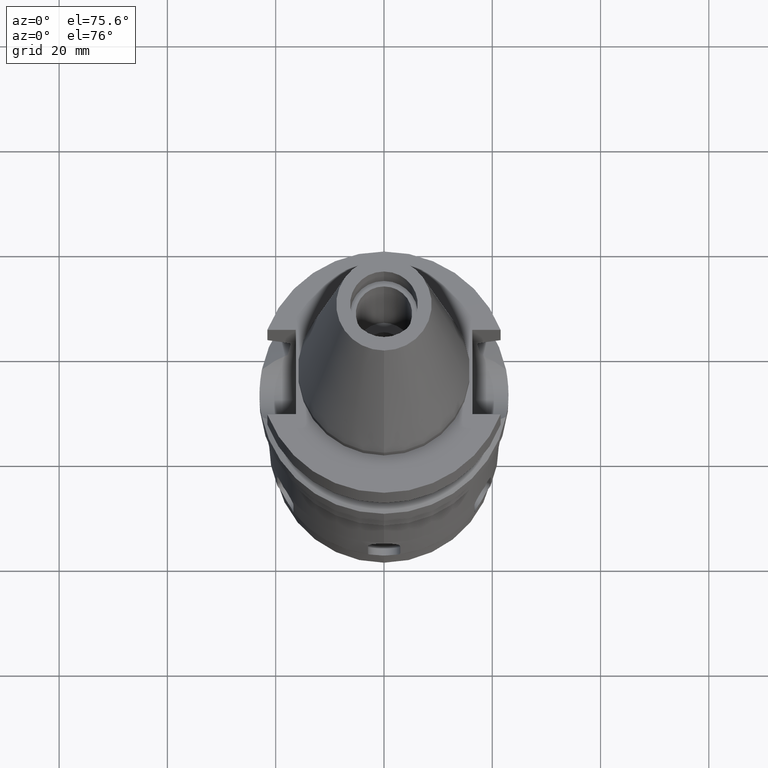
[diagram: clean part render]
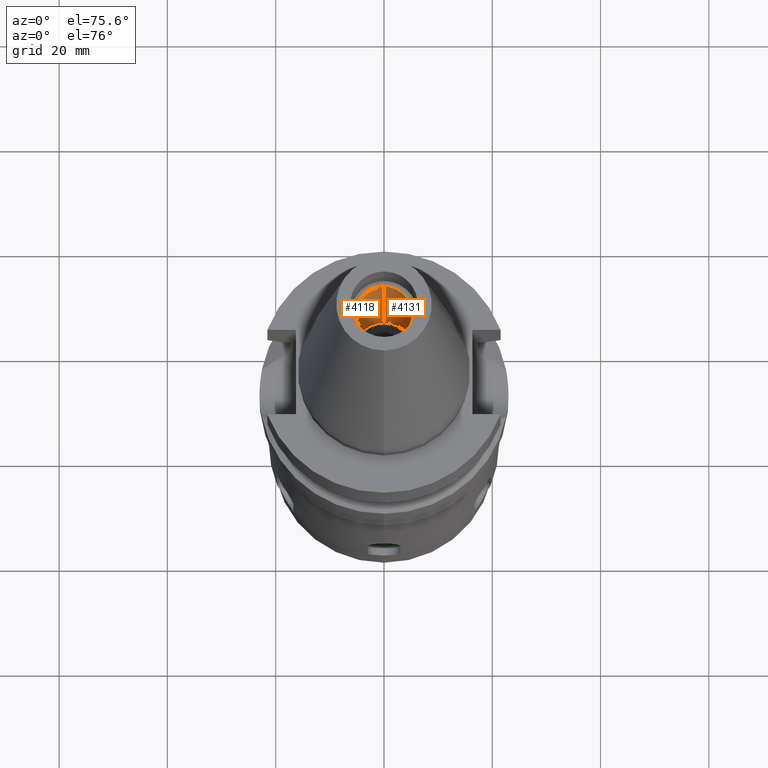
[diagram: same view with one multi-face feature highlighted, each face labeled with its STEP entity id]
A machine part, auxiliary view. The highlighted faces form ONE feature: a constant-radius fillet chain: 2 tangent blend faces with common blend radius 5.2 mm. The faces share edges in the B-rep.
Their STEP definitions:
[1] entity #4131 (Cylinder):
#2111=CARTESIAN_POINT('',(0.E0,1.889874940444E-14,1.44E1));
#2112=DIRECTION('',(0.E0,0.E0,-1.E0));
#2113=DIRECTION('',(0.E0,1.E0,0.E0));
#2114=AXIS2_PLACEMENT_3D('',#2111,#2112,#2113);
#2135=DIRECTION('',(0.E0,0.E0,1.E0));
#2136=VECTOR('',#2135,2.7E1);
#2137=CARTESIAN_POINT('',(0.E0,-5.2E0,1.44E1));
#2138=LINE('',#2137,#2136);
#2142=DIRECTION('',(0.E0,0.E0,1.E0));
#2143=VECTOR('',#2142,2.7E1);
#2144=CARTESIAN_POINT('',(0.E0,5.2E0,1.44E1));
#2145=LINE('',#2144,#2143);
#2165=CARTESIAN_POINT('',(0.E0,1.889874940444E-14,4.14E1));
#2166=DIRECTION('',(0.E0,0.E0,1.E0));
#2167=DIRECTION('',(0.E0,-1.E0,0.E0));
#2168=AXIS2_PLACEMENT_3D('',#2165,#2166,#2167);
#2347=CARTESIAN_POINT('',(0.E0,-5.2E0,4.14E1));
#2348=CARTESIAN_POINT('',(0.E0,5.2E0,4.14E1));
#2349=VERTEX_POINT('',#2347);
#2350=VERTEX_POINT('',#2348);
#2351=CARTESIAN_POINT('',(0.E0,5.2E0,1.44E1));
#2352=VERTEX_POINT('',#2351);
#2353=CARTESIAN_POINT('',(0.E0,-5.2E0,1.44E1));
#2354=VERTEX_POINT('',#2353);
#4119=CARTESIAN_POINT('',(0.E0,1.889874940444E-14,5.432E1));
#4120=DIRECTION('',(0.E0,0.E0,-1.E0));
#4121=DIRECTION('',(0.E0,-1.E0,0.E0));
#4122=AXIS2_PLACEMENT_3D('',#4119,#4120,#4121);
#4123=CYLINDRICAL_SURFACE('',#4122,5.2E0);
#4124=ORIENTED_EDGE('',*,*,#4109,.T.);
#4126=ORIENTED_EDGE('',*,*,#4125,.F.);
#4127=ORIENTED_EDGE('',*,*,#4112,.F.);
#4128=ORIENTED_EDGE('',*,*,#4095,.F.);
#4129=EDGE_LOOP('',(#4124,#4126,#4127,#4128));
#4130=FACE_OUTER_BOUND('',#4129,.F.);
#2115=CIRCLE('',#2114,5.2E0);
#2169=CIRCLE('',#2168,5.2E0);
#4095=EDGE_CURVE('',#2352,#2354,#2115,.T.);
#4109=EDGE_CURVE('',#2352,#2350,#2145,.T.);
#4112=EDGE_CURVE('',#2354,#2349,#2138,.T.);
#4125=EDGE_CURVE('',#2349,#2350,#2169,.T.);
#4131=ADVANCED_FACE('',(#4130),#4123,.F.);
[2] entity #4118 (Cylinder):
#2103=CARTESIAN_POINT('',(0.E0,1.889874940444E-14,1.44E1));
#2104=DIRECTION('',(0.E0,0.E0,-1.E0));
#2105=DIRECTION('',(0.E0,-1.E0,0.E0));
#2106=AXIS2_PLACEMENT_3D('',#2103,#2104,#2105);
#2135=DIRECTION('',(0.E0,0.E0,1.E0));
#2136=VECTOR('',#2135,2.7E1);
#2137=CARTESIAN_POINT('',(0.E0,-5.2E0,1.44E1));
#2138=LINE('',#2137,#2136);
#2142=DIRECTION('',(0.E0,0.E0,1.E0));
#2143=VECTOR('',#2142,2.7E1);
#2144=CARTESIAN_POINT('',(0.E0,5.2E0,1.44E1));
#2145=LINE('',#2144,#2143);
#2173=CARTESIAN_POINT('',(0.E0,1.889874940444E-14,4.14E1));
#2174=DIRECTION('',(0.E0,0.E0,1.E0));
#2175=DIRECTION('',(0.E0,1.E0,0.E0));
#2176=AXIS2_PLACEMENT_3D('',#2173,#2174,#2175);
#2347=CARTESIAN_POINT('',(0.E0,-5.2E0,4.14E1));
#2348=CARTESIAN_POINT('',(0.E0,5.2E0,4.14E1));
#2349=VERTEX_POINT('',#2347);
#2350=VERTEX_POINT('',#2348);
#2351=CARTESIAN_POINT('',(0.E0,5.2E0,1.44E1));
#2352=VERTEX_POINT('',#2351);
#2353=CARTESIAN_POINT('',(0.E0,-5.2E0,1.44E1));
#2354=VERTEX_POINT('',#2353);
#4104=CARTESIAN_POINT('',(0.E0,1.889874940444E-14,5.432E1));
#4105=DIRECTION('',(0.E0,0.E0,-1.E0));
#4106=DIRECTION('',(0.E0,-1.E0,0.E0));
#4107=AXIS2_PLACEMENT_3D('',#4104,#4105,#4106);
#4108=CYLINDRICAL_SURFACE('',#4107,5.2E0);
#4110=ORIENTED_EDGE('',*,*,#4109,.F.);
#4111=ORIENTED_EDGE('',*,*,#4093,.F.);
#4113=ORIENTED_EDGE('',*,*,#4112,.T.);
#4115=ORIENTED_EDGE('',*,*,#4114,.F.);
#4116=EDGE_LOOP('',(#4110,#4111,#4113,#4115));
#4117=FACE_OUTER_BOUND('',#4116,.F.);
#2107=CIRCLE('',#2106,5.2E0);
#2177=CIRCLE('',#2176,5.2E0);
#4093=EDGE_CURVE('',#2354,#2352,#2107,.T.);
#4109=EDGE_CURVE('',#2352,#2350,#2145,.T.);
#4112=EDGE_CURVE('',#2354,#2349,#2138,.T.);
#4114=EDGE_CURVE('',#2350,#2349,#2177,.T.);
#4118=ADVANCED_FACE('',(#4117),#4108,.F.);